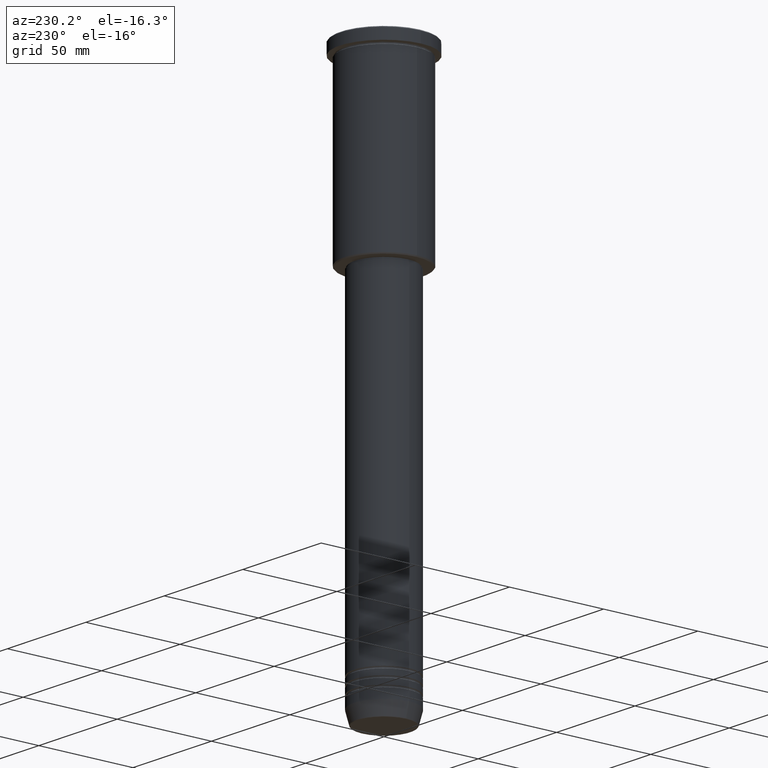
[diagram: clean part render]
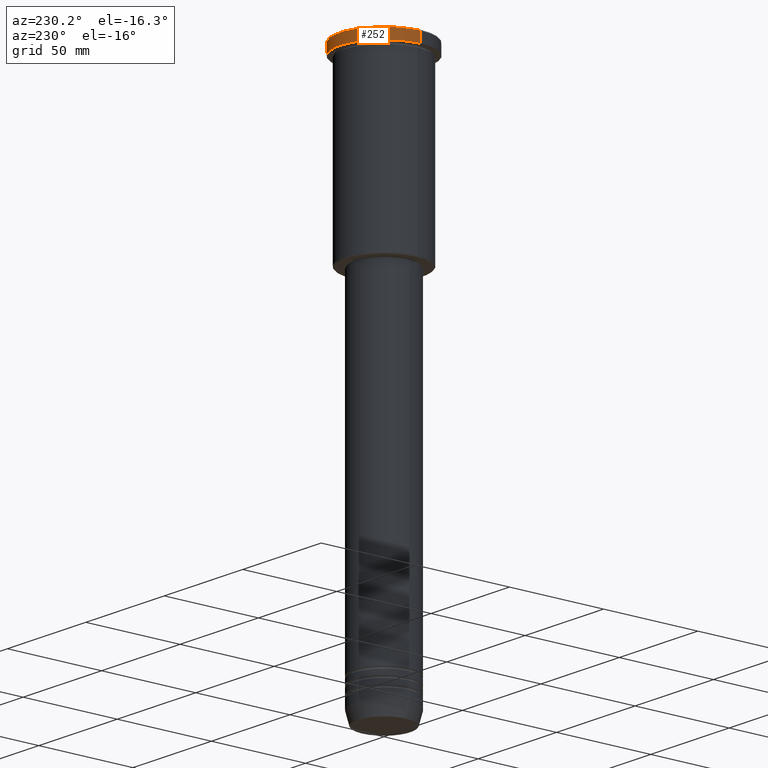
[diagram: same view with one face highlighted and labeled with its STEP entity id]
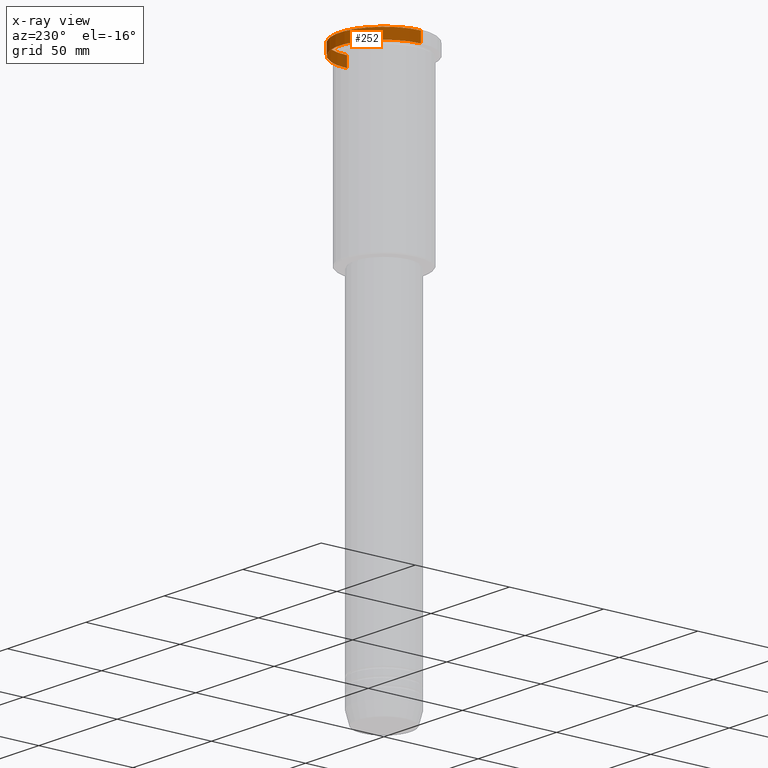
[diagram: x-ray of the same camera — body ghosted, the highlighted face saturated]
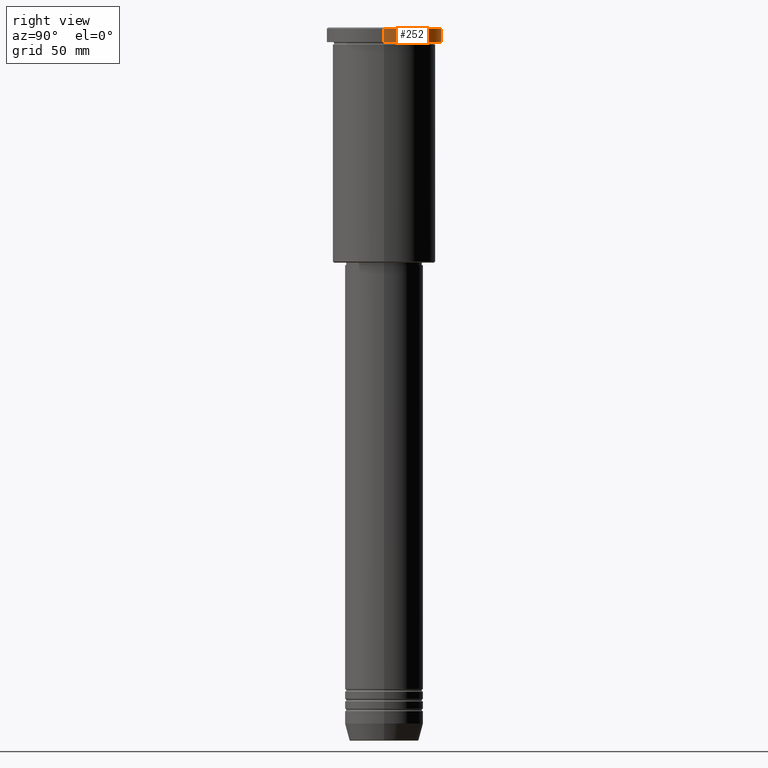
[diagram: same view with one face highlighted and labeled with its STEP entity id]
A machine part, auxiliary view. The second image highlights one B-rep face of the part: STEP entity #252.
The next image is the same camera in x-ray: the body ghosted, the highlighted face saturated — about 4% of this face is hidden behind the body in this view.
A second angle (right view) of the same face is appended — the face is thin or edge-on in the first view.
In plain terms, the highlighted cylindrical surface (partial cylindrical patch) has radius 23.5 mm, axis along (-0, -0, 1).
Its self-contained STEP definition (entity closure, byte-faithful):
#46 = LINE ( 'NONE', #139, #731 ) ;
#51 = AXIS2_PLACEMENT_3D ( 'NONE', #1108, #918, #289 ) ;
#69 = VERTEX_POINT ( 'NONE', #1174 ) ;
#105 = ORIENTED_EDGE ( 'NONE', *, *, #1116, .T. ) ;
#139 = CARTESIAN_POINT ( 'NONE',  ( 23.50000000000000000, 0.000000000000000000, 0.000000000000000000 ) ) ;
#176 = ORIENTED_EDGE ( 'NONE', *, *, #812, .T. ) ;
#220 = CARTESIAN_POINT ( 'NONE',  ( -23.50000000000000000, 2.877919977996280320E-15, -5.999999999999993783 ) ) ;
#252 = ADVANCED_FACE ( 'NONE', ( #285 ), #650, .T. ) ;
#259 = VERTEX_POINT ( 'NONE', #220 ) ;
#266 = CIRCLE ( 'NONE', #1045, 23.50000000000000000 ) ;
#270 = DIRECTION ( 'NONE',  ( 1.000000000000000000, 0.000000000000000000, 0.000000000000000000 ) ) ;
#283 = DIRECTION ( 'NONE',  ( 1.000000000000000000, 0.000000000000000000, 0.000000000000000000 ) ) ;
#285 = FACE_OUTER_BOUND ( 'NONE', #540, .T. ) ;
#286 = EDGE_CURVE ( 'NONE', #583, #69, #46, .T. ) ;
#289 = DIRECTION ( 'NONE',  ( 1.000000000000000000, 0.000000000000000000, 0.000000000000000000 ) ) ;
#300 = CARTESIAN_POINT ( 'NONE',  ( -23.50000000000000000, 2.877919977996280320E-15, 0.000000000000000000 ) ) ;
#340 = AXIS2_PLACEMENT_3D ( 'NONE', #1019, #1089, #270 ) ;
#460 = DIRECTION ( 'NONE',  ( 0.000000000000000000, 0.000000000000000000, -1.000000000000000000 ) ) ;
#474 = CARTESIAN_POINT ( 'NONE',  ( -23.50000000000000000, 2.877919977996280320E-15, -0.5000000000000281997 ) ) ;
#526 = ORIENTED_EDGE ( 'NONE', *, *, #1151, .T. ) ;
#540 = EDGE_LOOP ( 'NONE', ( #526, #176, #105, #621 ) ) ;
#583 = VERTEX_POINT ( 'NONE', #1005 ) ;
#597 = DIRECTION ( 'NONE',  ( -0.000000000000000000, -0.000000000000000000, 1.000000000000000000 ) ) ;
#621 = ORIENTED_EDGE ( 'NONE', *, *, #286, .F. ) ;
#650 = CYLINDRICAL_SURFACE ( 'NONE', #51, 23.50000000000000000 ) ;
#663 = CIRCLE ( 'NONE', #340, 23.50000000000000000 ) ;
#665 = DIRECTION ( 'NONE',  ( -0.000000000000000000, -0.000000000000000000, 1.000000000000000000 ) ) ;
#731 = VECTOR ( 'NONE', #597, 1000.000000000000000 ) ;
#812 = EDGE_CURVE ( 'NONE', #259, #1037, #1119, .T. ) ;
#910 = CARTESIAN_POINT ( 'NONE',  ( 0.000000000000000000, 0.000000000000000000, -0.5000000000000281997 ) ) ;
#918 = DIRECTION ( 'NONE',  ( -0.000000000000000000, -0.000000000000000000, 1.000000000000000000 ) ) ;
#1005 = CARTESIAN_POINT ( 'NONE',  ( 23.50000000000000000, 0.000000000000000000, -5.999999999999993783 ) ) ;
#1019 = CARTESIAN_POINT ( 'NONE',  ( 0.000000000000000000, 0.000000000000000000, -5.999999999999993783 ) ) ;
#1037 = VERTEX_POINT ( 'NONE', #474 ) ;
#1045 = AXIS2_PLACEMENT_3D ( 'NONE', #910, #460, #283 ) ;
#1089 = DIRECTION ( 'NONE',  ( -0.000000000000000000, -0.000000000000000000, 1.000000000000000000 ) ) ;
#1108 = CARTESIAN_POINT ( 'NONE',  ( 0.000000000000000000, 0.000000000000000000, 0.000000000000000000 ) ) ;
#1116 = EDGE_CURVE ( 'NONE', #1037, #69, #266, .T. ) ;
#1119 = LINE ( 'NONE', #300, #1178 ) ;
#1151 = EDGE_CURVE ( 'NONE', #583, #259, #663, .T. ) ;
#1174 = CARTESIAN_POINT ( 'NONE',  ( 23.50000000000000000, 0.000000000000000000, -0.5000000000000281997 ) ) ;
#1178 = VECTOR ( 'NONE', #665, 1000.000000000000000 ) ;